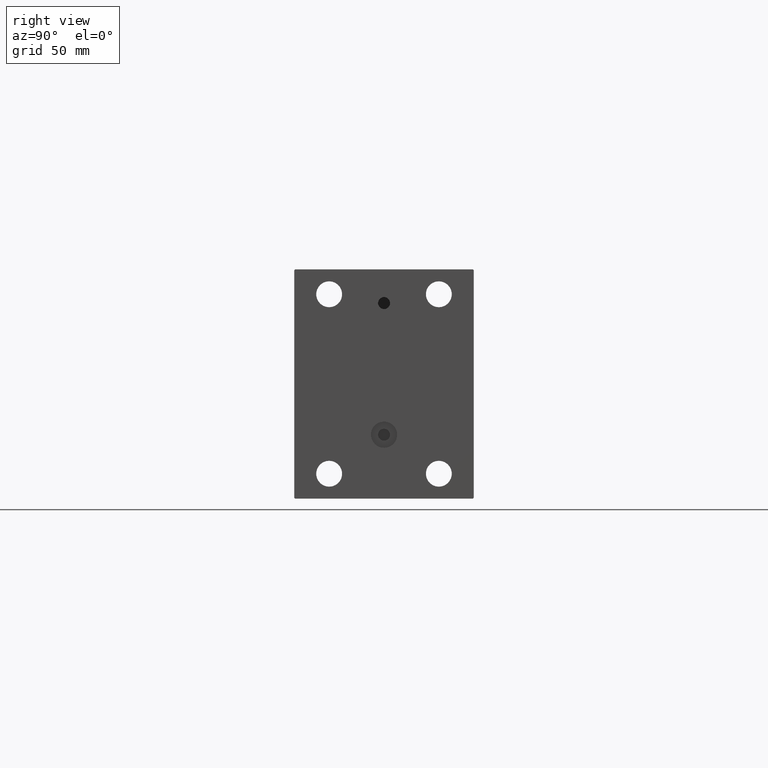
[diagram: clean part render]
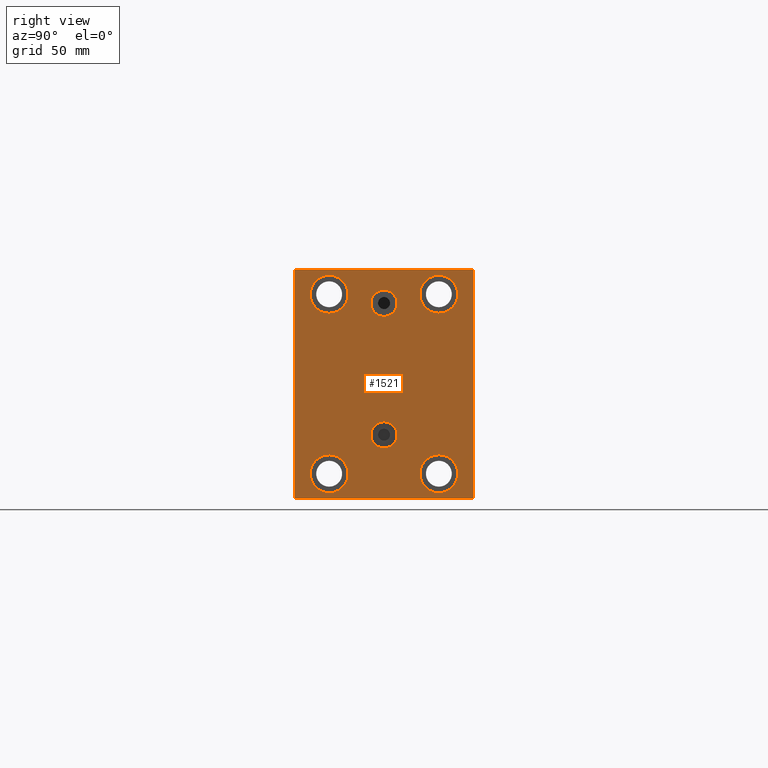
[diagram: same view with one face highlighted and labeled with its STEP entity id]
A machine part, right view. The second image highlights one B-rep face of the part: STEP entity #1521.
In plain terms, the highlighted planar face has unit normal (1, 0, 0).
Its self-contained STEP definition (entity closure, byte-faithful):
#106 = VERTEX_POINT ( 'NONE', #12347 ) ;
#215 = EDGE_CURVE ( 'NONE', #8445, #24803, #12814, .T. ) ;
#228 = CARTESIAN_POINT ( 'NONE',  ( 278.0000000000000000, 3.928666931664708475E-15, -18.91999999999999105 ) ) ;
#537 = VECTOR ( 'NONE', #26852, 1000.000000000000000 ) ;
#543 = CARTESIAN_POINT ( 'NONE',  ( 278.0000000000000000, 3.122849337825749828E-15, -25.49999999999999645 ) ) ;
#566 = EDGE_CURVE ( 'NONE', #14822, #106, #39762, .T. ) ;
#1026 = ORIENTED_EDGE ( 'NONE', *, *, #45327, .T. ) ;
#1391 = ORIENTED_EDGE ( 'NONE', *, *, #8522, .T. ) ;
#1521 = ADVANCED_FACE ( 'NONE', ( #23890, #2947, #20424, #19761, #2262, #27118, #26892 ), #9640, .T. ) ;
#1572 = DIRECTION ( 'NONE',  ( -0.000000000000000000, 0.7071067811865279218, 0.7071067811865672237 ) ) ;
#2126 = DIRECTION ( 'NONE',  ( 0.000000000000000000, 0.000000000000000000, -1.000000000000000000 ) ) ;
#2180 = DIRECTION ( 'NONE',  ( -1.000000000000000000, -0.000000000000000000, -0.000000000000000000 ) ) ;
#2262 = FACE_BOUND ( 'NONE', #45152, .T. ) ;
#2324 = VECTOR ( 'NONE', #41327, 1000.000000000000000 ) ;
#2914 = CIRCLE ( 'NONE', #7295, 9.500000000000001776 ) ;
#2947 = FACE_BOUND ( 'NONE', #19358, .T. ) ;
#3039 = EDGE_CURVE ( 'NONE', #24552, #9925, #14644, .T. ) ;
#3086 = VERTEX_POINT ( 'NONE', #12523 ) ;
#3424 = VECTOR ( 'NONE', #8681, 1000.000000000000000 ) ;
#3843 = DIRECTION ( 'NONE',  ( 1.000000000000000000, 0.000000000000000000, 0.000000000000000000 ) ) ;
#3935 = EDGE_LOOP ( 'NONE', ( #1026, #11941 ) ) ;
#4168 = CIRCLE ( 'NONE', #29920, 9.500000000000001776 ) ;
#4797 = ORIENTED_EDGE ( 'NONE', *, *, #215, .T. ) ;
#4950 = DIRECTION ( 'NONE',  ( 0.000000000000000000, 0.000000000000000000, 1.000000000000000000 ) ) ;
#5080 = VERTEX_POINT ( 'NONE', #10708 ) ;
#5180 = CARTESIAN_POINT ( 'NONE',  ( 278.0000000000000000, 44.50000000000000000, 57.50000000000000711 ) ) ;
#5189 = DIRECTION ( 'NONE',  ( -1.000000000000000000, -0.000000000000000000, -0.000000000000000000 ) ) ;
#5234 = AXIS2_PLACEMENT_3D ( 'NONE', #17659, #3843, #18961 ) ;
#5444 = CARTESIAN_POINT ( 'NONE',  ( 278.0000000000000000, -27.49999999999998934, 35.50000000000000711 ) ) ;
#5599 = ORIENTED_EDGE ( 'NONE', *, *, #11229, .T. ) ;
#5683 = CARTESIAN_POINT ( 'NONE',  ( 278.0000000000000000, 45.00000000000000000, 57.50000000000000711 ) ) ;
#6041 = CIRCLE ( 'NONE', #29542, 9.500000000000001776 ) ;
#6071 = AXIS2_PLACEMENT_3D ( 'NONE', #23821, #34167, #44734 ) ;
#6174 = DIRECTION ( 'NONE',  ( 1.000000000000000000, 0.000000000000000000, 0.000000000000000000 ) ) ;
#6274 = LINE ( 'NONE', #33897, #28083 ) ;
#6591 = VERTEX_POINT ( 'NONE', #5180 ) ;
#7295 = AXIS2_PLACEMENT_3D ( 'NONE', #16812, #5189, #4950 ) ;
#7891 = AXIS2_PLACEMENT_3D ( 'NONE', #9679, #31490, #12897 ) ;
#7954 = CARTESIAN_POINT ( 'NONE',  ( 278.0000000000000000, -45.00000000000000000, 56.99999999999999289 ) ) ;
#8051 = ORIENTED_EDGE ( 'NONE', *, *, #34392, .T. ) ;
#8293 = CARTESIAN_POINT ( 'NONE',  ( 278.0000000000000000, 27.49999999999998934, -54.49999999999998579 ) ) ;
#8445 = VERTEX_POINT ( 'NONE', #17701 ) ;
#8455 = LINE ( 'NONE', #5683, #3424 ) ;
#8522 = EDGE_CURVE ( 'NONE', #106, #22317, #38407, .T. ) ;
#8580 = CARTESIAN_POINT ( 'NONE',  ( 278.0000000000000000, 27.50000000000001066, 54.50000000000000711 ) ) ;
#8681 = DIRECTION ( 'NONE',  ( 0.000000000000000000, -1.000000000000000000, -1.541976423090495387E-16 ) ) ;
#8928 = EDGE_CURVE ( 'NONE', #10017, #22129, #18321, .T. ) ;
#8993 = AXIS2_PLACEMENT_3D ( 'NONE', #31153, #9317, #40826 ) ;
#9236 = ORIENTED_EDGE ( 'NONE', *, *, #22105, .T. ) ;
#9317 = DIRECTION ( 'NONE',  ( -1.000000000000000000, -0.000000000000000000, -0.000000000000000000 ) ) ;
#9403 = DIRECTION ( 'NONE',  ( 0.000000000000000000, 0.000000000000000000, -1.000000000000000000 ) ) ;
#9509 = DIRECTION ( 'NONE',  ( 0.000000000000000000, 0.000000000000000000, 1.000000000000000000 ) ) ;
#9640 = PLANE ( 'NONE',  #41028 ) ;
#9679 = CARTESIAN_POINT ( 'NONE',  ( 278.0000000000000000, 3.122849337825749828E-15, -25.49999999999999645 ) ) ;
#9925 = VERTEX_POINT ( 'NONE', #42701 ) ;
#9984 = EDGE_CURVE ( 'NONE', #27358, #18926, #26456, .T. ) ;
#10017 = VERTEX_POINT ( 'NONE', #28158 ) ;
#10708 = CARTESIAN_POINT ( 'NONE',  ( 278.0000000000000000, 27.49999999999998934, -35.49999999999998579 ) ) ;
#10781 = LINE ( 'NONE', #39519, #42333 ) ;
#11019 = DIRECTION ( 'NONE',  ( -0.000000000000000000, 0.7071067811865671127, -0.7071067811865279218 ) ) ;
#11141 = DIRECTION ( 'NONE',  ( 1.000000000000000000, 0.000000000000000000, -0.000000000000000000 ) ) ;
#11229 = EDGE_CURVE ( 'NONE', #22317, #29335, #18782, .T. ) ;
#11704 = VERTEX_POINT ( 'NONE', #12613 ) ;
#11941 = ORIENTED_EDGE ( 'NONE', *, *, #16298, .T. ) ;
#12328 = EDGE_CURVE ( 'NONE', #9925, #24552, #35040, .T. ) ;
#12347 = CARTESIAN_POINT ( 'NONE',  ( 278.0000000000000000, 44.49999999999998579, -57.50000000000000711 ) ) ;
#12523 = CARTESIAN_POINT ( 'NONE',  ( 278.0000000000000000, -27.49999999999998934, 54.50000000000000711 ) ) ;
#12569 = DIRECTION ( 'NONE',  ( 0.000000000000000000, 0.000000000000000000, 1.000000000000000000 ) ) ;
#12585 = CARTESIAN_POINT ( 'NONE',  ( 278.0000000000000000, -51.00000000000123634, 50.99999999999841549 ) ) ;
#12613 = CARTESIAN_POINT ( 'NONE',  ( 278.0000000000000000, -27.50000000000000000, -54.49999999999998579 ) ) ;
#12814 = LINE ( 'NONE', #12585, #537 ) ;
#12897 = DIRECTION ( 'NONE',  ( 0.000000000000000000, 0.000000000000000000, 1.000000000000000000 ) ) ;
#13121 = VECTOR ( 'NONE', #35843, 1000.000000000000000 ) ;
#13205 = EDGE_CURVE ( 'NONE', #16510, #14822, #10781, .T. ) ;
#13242 = CARTESIAN_POINT ( 'NONE',  ( 278.0000000000000000, 45.00000000000000000, 57.00000000000000711 ) ) ;
#13353 = DIRECTION ( 'NONE',  ( 0.000000000000000000, 0.000000000000000000, 1.000000000000000000 ) ) ;
#13717 = CIRCLE ( 'NONE', #26206, 9.500000000000001776 ) ;
#14591 = DIRECTION ( 'NONE',  ( 0.000000000000000000, 0.000000000000000000, 1.000000000000000000 ) ) ;
#14644 = CIRCLE ( 'NONE', #21237, 6.580000000000002736 ) ;
#14813 = EDGE_CURVE ( 'NONE', #6591, #8445, #8455, .T. ) ;
#14822 = VERTEX_POINT ( 'NONE', #22483 ) ;
#15431 = EDGE_CURVE ( 'NONE', #43217, #11704, #13717, .T. ) ;
#16298 = EDGE_CURVE ( 'NONE', #3086, #42658, #4168, .T. ) ;
#16510 = VERTEX_POINT ( 'NONE', #36585 ) ;
#16617 = ORIENTED_EDGE ( 'NONE', *, *, #9984, .T. ) ;
#16812 = CARTESIAN_POINT ( 'NONE',  ( 278.0000000000000000, 27.49999999999998934, -44.99999999999998579 ) ) ;
#17659 = CARTESIAN_POINT ( 'NONE',  ( 278.0000000000000000, -5.306417150674643778E-15, 40.50000000000000711 ) ) ;
#17679 = AXIS2_PLACEMENT_3D ( 'NONE', #34932, #44853, #13353 ) ;
#17701 = CARTESIAN_POINT ( 'NONE',  ( 278.0000000000000000, -44.50000000000000000, 57.49999999999999289 ) ) ;
#18143 = ORIENTED_EDGE ( 'NONE', *, *, #33454, .T. ) ;
#18321 = CIRCLE ( 'NONE', #24213, 6.580000000000002736 ) ;
#18782 = LINE ( 'NONE', #41263, #30654 ) ;
#18918 = CARTESIAN_POINT ( 'NONE',  ( 278.0000000000000000, 27.50000000000001066, 35.50000000000000711 ) ) ;
#18926 = VERTEX_POINT ( 'NONE', #8580 ) ;
#18961 = DIRECTION ( 'NONE',  ( 0.000000000000000000, 0.000000000000000000, -1.000000000000000000 ) ) ;
#19253 = DIRECTION ( 'NONE',  ( 0.000000000000000000, -1.206764157201257045E-16, 1.000000000000000000 ) ) ;
#19358 = EDGE_LOOP ( 'NONE', ( #33845, #35751 ) ) ;
#19761 = FACE_BOUND ( 'NONE', #3935, .T. ) ;
#20057 = VERTEX_POINT ( 'NONE', #8293 ) ;
#20139 = DIRECTION ( 'NONE',  ( 0.000000000000000000, 0.000000000000000000, 1.000000000000000000 ) ) ;
#20424 = FACE_BOUND ( 'NONE', #23258, .T. ) ;
#20924 = CARTESIAN_POINT ( 'NONE',  ( 278.0000000000000000, 51.00000000000125056, -50.99999999999841549 ) ) ;
#21181 = DIRECTION ( 'NONE',  ( 0.000000000000000000, 0.000000000000000000, 1.000000000000000000 ) ) ;
#21237 = AXIS2_PLACEMENT_3D ( 'NONE', #543, #11141, #14591 ) ;
#21264 = VECTOR ( 'NONE', #1572, 1000.000000000000000 ) ;
#21820 = CARTESIAN_POINT ( 'NONE',  ( 278.0000000000000000, -45.00000000000000000, -57.50000000000000711 ) ) ;
#22105 = EDGE_CURVE ( 'NONE', #20057, #5080, #2914, .T. ) ;
#22129 = VERTEX_POINT ( 'NONE', #30049 ) ;
#22317 = VERTEX_POINT ( 'NONE', #28054 ) ;
#22483 = CARTESIAN_POINT ( 'NONE',  ( 278.0000000000000000, -44.50000000000000000, -57.50000000000000711 ) ) ;
#23258 = EDGE_LOOP ( 'NONE', ( #9236, #8051 ) ) ;
#23265 = EDGE_LOOP ( 'NONE', ( #44157, #27607 ) ) ;
#23420 = CARTESIAN_POINT ( 'NONE',  ( 278.0000000000000000, -5.306417150674643778E-15, 40.50000000000000711 ) ) ;
#23821 = CARTESIAN_POINT ( 'NONE',  ( 278.0000000000000000, 27.49999999999998934, -44.99999999999998579 ) ) ;
#23836 = CARTESIAN_POINT ( 'NONE',  ( 278.0000000000000000, 27.50000000000001066, 45.00000000000000711 ) ) ;
#23890 = FACE_BOUND ( 'NONE', #23265, .T. ) ;
#24070 = CARTESIAN_POINT ( 'NONE',  ( 278.0000000000000000, 50.99999999999877076, 51.00000000000159162 ) ) ;
#24213 = AXIS2_PLACEMENT_3D ( 'NONE', #23420, #40673, #33776 ) ;
#24552 = VERTEX_POINT ( 'NONE', #228 ) ;
#24636 = ORIENTED_EDGE ( 'NONE', *, *, #33107, .T. ) ;
#24803 = VERTEX_POINT ( 'NONE', #7954 ) ;
#25768 = CIRCLE ( 'NONE', #17679, 9.500000000000001776 ) ;
#26206 = AXIS2_PLACEMENT_3D ( 'NONE', #34982, #31546, #21181 ) ;
#26456 = CIRCLE ( 'NONE', #45525, 9.500000000000001776 ) ;
#26668 = CIRCLE ( 'NONE', #6071, 9.500000000000001776 ) ;
#26833 = EDGE_CURVE ( 'NONE', #29335, #6591, #27305, .T. ) ;
#26852 = DIRECTION ( 'NONE',  ( 0.000000000000000000, -0.7071067811865279218, -0.7071067811865671127 ) ) ;
#26892 = FACE_OUTER_BOUND ( 'NONE', #40040, .T. ) ;
#27118 = FACE_BOUND ( 'NONE', #28512, .T. ) ;
#27305 = LINE ( 'NONE', #24070, #2324 ) ;
#27358 = VERTEX_POINT ( 'NONE', #18918 ) ;
#27607 = ORIENTED_EDGE ( 'NONE', *, *, #8928, .F. ) ;
#28054 = CARTESIAN_POINT ( 'NONE',  ( 278.0000000000000000, 45.00000000000001421, -56.99999999999997868 ) ) ;
#28083 = VECTOR ( 'NONE', #2126, 1000.000000000000000 ) ;
#28158 = CARTESIAN_POINT ( 'NONE',  ( 278.0000000000000000, -4.500599556835684736E-15, 47.08000000000001251 ) ) ;
#28512 = EDGE_LOOP ( 'NONE', ( #24636, #34044 ) ) ;
#29335 = VERTEX_POINT ( 'NONE', #13242 ) ;
#29542 = AXIS2_PLACEMENT_3D ( 'NONE', #37616, #2180, #20139 ) ;
#29920 = AXIS2_PLACEMENT_3D ( 'NONE', #34119, #34558, #9509 ) ;
#30049 = CARTESIAN_POINT ( 'NONE',  ( 278.0000000000000000, -5.306417150674643778E-15, 33.92000000000000881 ) ) ;
#30282 = CIRCLE ( 'NONE', #8993, 9.500000000000001776 ) ;
#30363 = CARTESIAN_POINT ( 'NONE',  ( 278.0000000000000000, -27.50000000000000000, -35.49999999999998579 ) ) ;
#30654 = VECTOR ( 'NONE', #19253, 1000.000000000000000 ) ;
#30831 = EDGE_CURVE ( 'NONE', #22129, #10017, #31674, .T. ) ;
#31153 = CARTESIAN_POINT ( 'NONE',  ( 278.0000000000000000, 27.50000000000001066, 45.00000000000000711 ) ) ;
#31290 = ORIENTED_EDGE ( 'NONE', *, *, #14813, .T. ) ;
#31490 = DIRECTION ( 'NONE',  ( 1.000000000000000000, 0.000000000000000000, -0.000000000000000000 ) ) ;
#31546 = DIRECTION ( 'NONE',  ( -1.000000000000000000, -0.000000000000000000, -0.000000000000000000 ) ) ;
#31674 = CIRCLE ( 'NONE', #5234, 6.580000000000002736 ) ;
#33107 = EDGE_CURVE ( 'NONE', #11704, #43217, #6041, .T. ) ;
#33454 = EDGE_CURVE ( 'NONE', #18926, #27358, #30282, .T. ) ;
#33776 = DIRECTION ( 'NONE',  ( 0.000000000000000000, 0.000000000000000000, -1.000000000000000000 ) ) ;
#33845 = ORIENTED_EDGE ( 'NONE', *, *, #12328, .F. ) ;
#33897 = CARTESIAN_POINT ( 'NONE',  ( 278.0000000000000000, -45.00000000000000000, 57.49999999999999289 ) ) ;
#34044 = ORIENTED_EDGE ( 'NONE', *, *, #15431, .T. ) ;
#34119 = CARTESIAN_POINT ( 'NONE',  ( 278.0000000000000000, -27.49999999999998934, 45.00000000000000711 ) ) ;
#34167 = DIRECTION ( 'NONE',  ( -1.000000000000000000, -0.000000000000000000, -0.000000000000000000 ) ) ;
#34392 = EDGE_CURVE ( 'NONE', #5080, #20057, #26668, .T. ) ;
#34456 = CARTESIAN_POINT ( 'NONE',  ( 278.0000000000000000, 0.000000000000000000, 0.000000000000000000 ) ) ;
#34558 = DIRECTION ( 'NONE',  ( -1.000000000000000000, -0.000000000000000000, -0.000000000000000000 ) ) ;
#34671 = EDGE_CURVE ( 'NONE', #24803, #16510, #6274, .T. ) ;
#34932 = CARTESIAN_POINT ( 'NONE',  ( 278.0000000000000000, -27.49999999999998934, 45.00000000000000711 ) ) ;
#34982 = CARTESIAN_POINT ( 'NONE',  ( 278.0000000000000000, -27.50000000000000000, -44.99999999999998579 ) ) ;
#35040 = CIRCLE ( 'NONE', #7891, 6.580000000000002736 ) ;
#35751 = ORIENTED_EDGE ( 'NONE', *, *, #3039, .F. ) ;
#35843 = DIRECTION ( 'NONE',  ( 0.000000000000000000, 1.000000000000000000, 0.000000000000000000 ) ) ;
#36585 = CARTESIAN_POINT ( 'NONE',  ( 278.0000000000000000, -45.00000000000000000, -57.00000000000003553 ) ) ;
#37616 = CARTESIAN_POINT ( 'NONE',  ( 278.0000000000000000, -27.50000000000000000, -44.99999999999998579 ) ) ;
#37664 = ORIENTED_EDGE ( 'NONE', *, *, #13205, .T. ) ;
#37857 = DIRECTION ( 'NONE',  ( -1.000000000000000000, -0.000000000000000000, -0.000000000000000000 ) ) ;
#38407 = LINE ( 'NONE', #20924, #21264 ) ;
#39519 = CARTESIAN_POINT ( 'NONE',  ( 278.0000000000000000, -50.99999999999877076, -51.00000000000159162 ) ) ;
#39762 = LINE ( 'NONE', #21820, #13121 ) ;
#39780 = ORIENTED_EDGE ( 'NONE', *, *, #566, .T. ) ;
#40040 = EDGE_LOOP ( 'NONE', ( #31290, #4797, #44785, #37664, #39780, #1391, #5599, #40855 ) ) ;
#40673 = DIRECTION ( 'NONE',  ( 1.000000000000000000, 0.000000000000000000, 0.000000000000000000 ) ) ;
#40826 = DIRECTION ( 'NONE',  ( 0.000000000000000000, 0.000000000000000000, 1.000000000000000000 ) ) ;
#40855 = ORIENTED_EDGE ( 'NONE', *, *, #26833, .T. ) ;
#41028 = AXIS2_PLACEMENT_3D ( 'NONE', #34456, #6174, #9403 ) ;
#41263 = CARTESIAN_POINT ( 'NONE',  ( 278.0000000000000000, 45.00000000000001421, -57.50000000000000711 ) ) ;
#41327 = DIRECTION ( 'NONE',  ( -0.000000000000000000, -0.7071067811865671127, 0.7071067811865279218 ) ) ;
#42333 = VECTOR ( 'NONE', #11019, 1000.000000000000000 ) ;
#42658 = VERTEX_POINT ( 'NONE', #5444 ) ;
#42701 = CARTESIAN_POINT ( 'NONE',  ( 278.0000000000000000, 3.122849337825749828E-15, -32.07999999999999829 ) ) ;
#43217 = VERTEX_POINT ( 'NONE', #30363 ) ;
#44157 = ORIENTED_EDGE ( 'NONE', *, *, #30831, .F. ) ;
#44734 = DIRECTION ( 'NONE',  ( 0.000000000000000000, 0.000000000000000000, 1.000000000000000000 ) ) ;
#44785 = ORIENTED_EDGE ( 'NONE', *, *, #34671, .T. ) ;
#44853 = DIRECTION ( 'NONE',  ( -1.000000000000000000, -0.000000000000000000, -0.000000000000000000 ) ) ;
#45152 = EDGE_LOOP ( 'NONE', ( #16617, #18143 ) ) ;
#45327 = EDGE_CURVE ( 'NONE', #42658, #3086, #25768, .T. ) ;
#45525 = AXIS2_PLACEMENT_3D ( 'NONE', #23836, #37857, #12569 ) ;